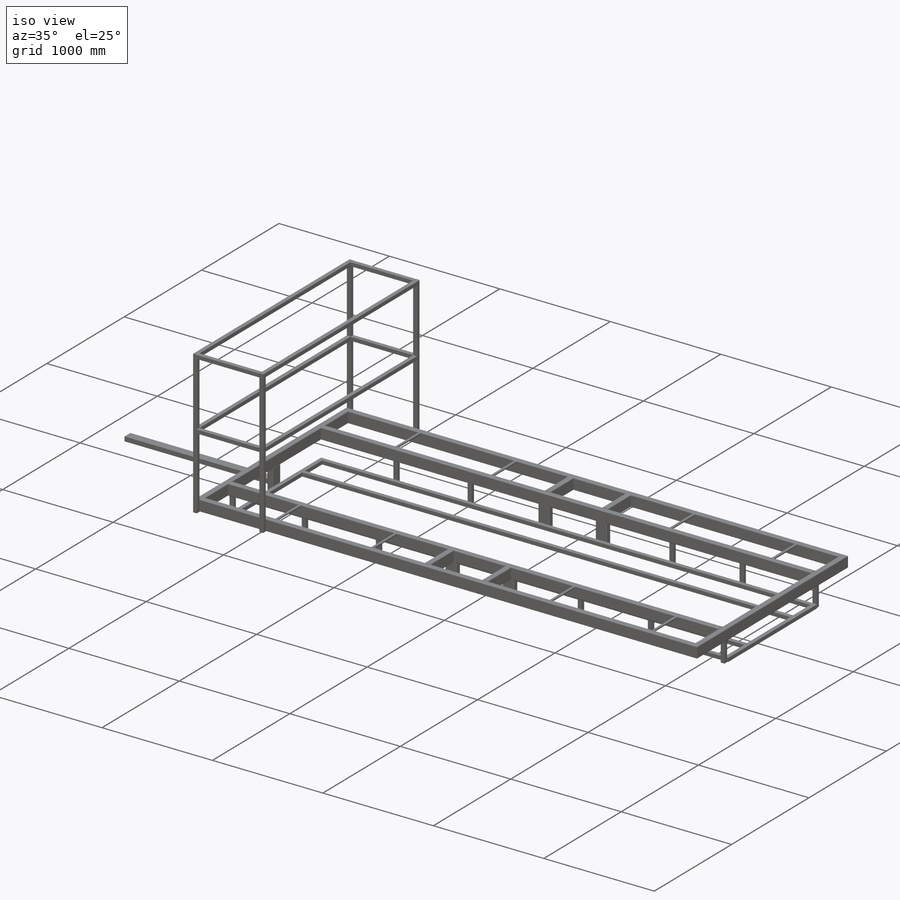
[diagram: iso view]
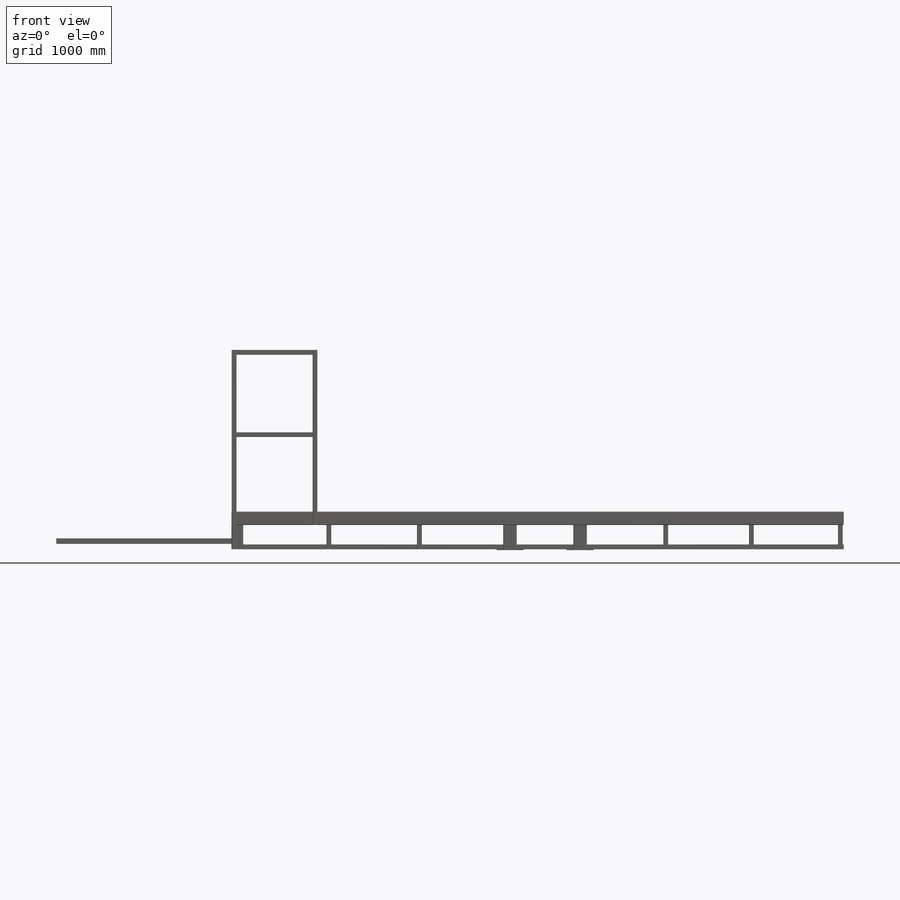
[diagram: front view]
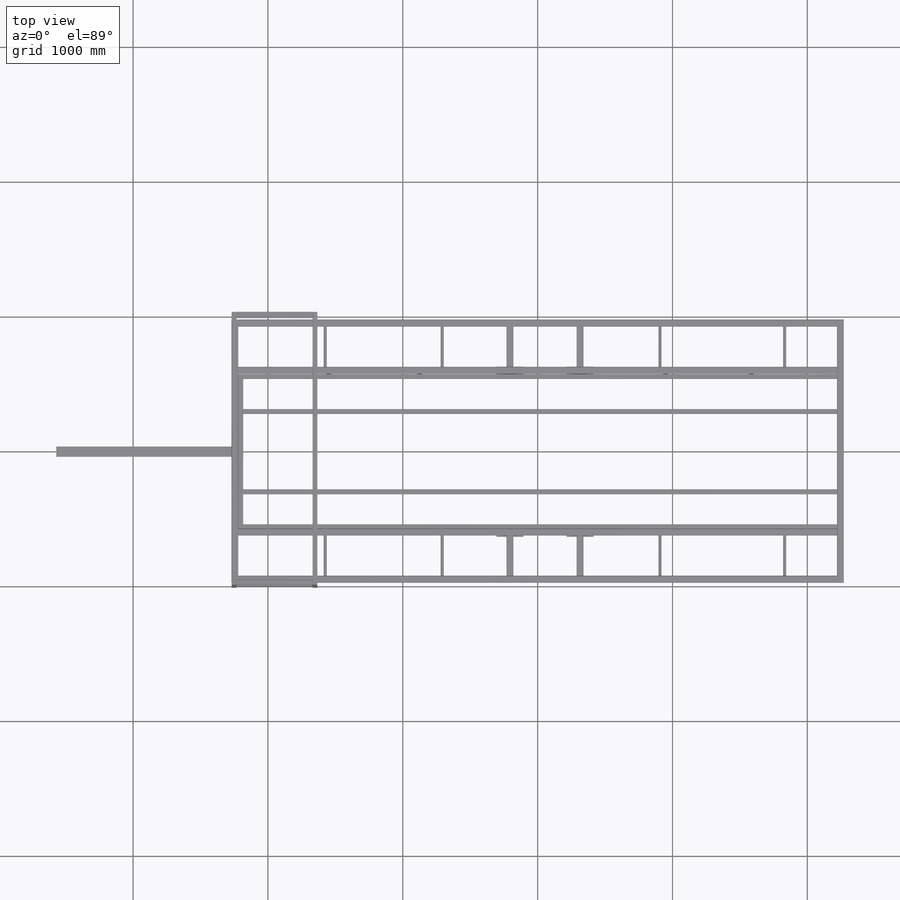
[diagram: top view]
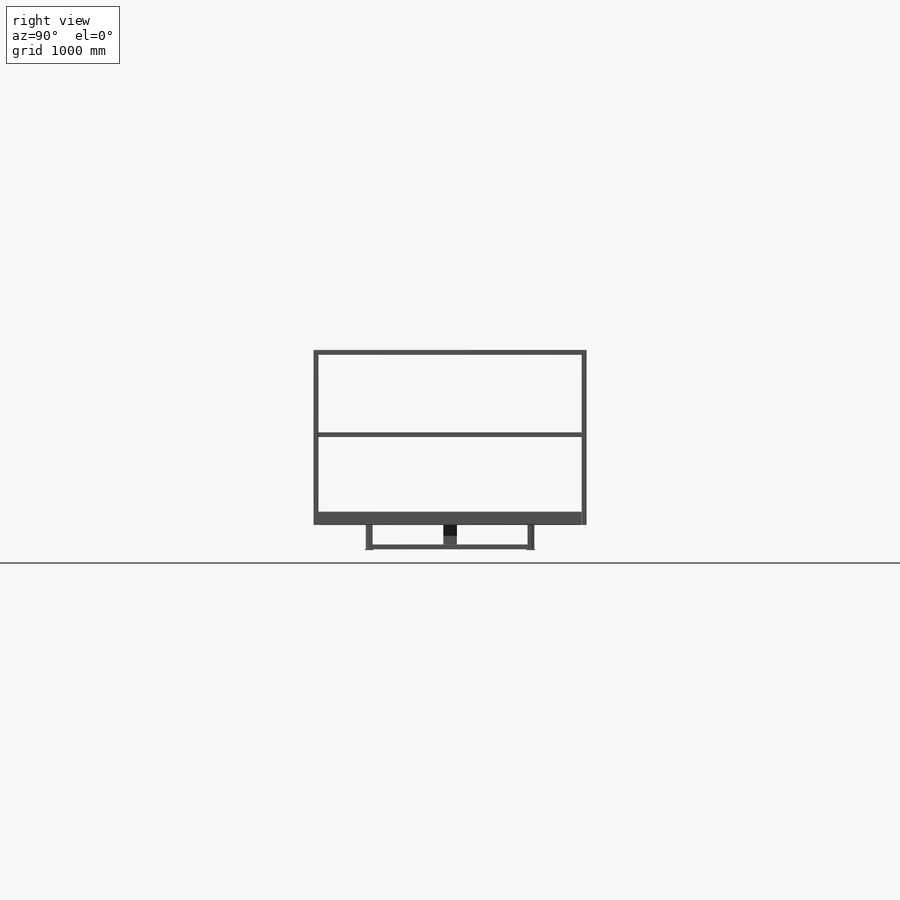
[diagram: right view]
SOLIDWORKS PART (.sldprt)
format: sldprt  version: not decoded by parser v0  size: 7,056,896 bytes
history: native  units: mm
features: sketch x53, plane x16, extrude x10, delete_body x2, material x1, mirror x1 + 13 further entries (+12 scaffold rows collapsed; 1 parser-record rows omitted)
feature tree (109):
  scaffold x12  (default folders/planes/origin — collapsed)
  material  "Plain Carbon Steel"
  "Cut-List-Item2"
  "Cut-List-Item3"
  "Cut-List-Item4"
  "Cut-List-Item5"
  "Cut-List-Item6"
  "Cut-List-Item7"
  "Cut-List-Item8"
  "Cut-List-Item9"
  "Cut-List-Item10"
  "Cut-List-Item11"
  "Cut-List-Item12"
  "Cut-List-Item13"
  "Cut-List-Item14"
  plane  "PlaneSupportCenter"  Offset=200mm
  sketch  "Sketch1"  dims[D1=4540.0mm D2=1950.0mm D3=375.0mm D4=520.0mm D5=145.0mm]
  plane  "Plane1"
  sketch  "Sketch18"  dims[c1.D1=6.35mm c1.D2=6.35mm c1.D3=6.35mm c1.D4=6.35mm c1.D5=6.35mm c1.D6=6.35mm c1.D7=6.35mm c1.D8=6.35mm c2.D1=6.604mm c2.D2=6.604mm c2.D3=6.604mm c2.D4=6.604mm c3.D1=6.4mm c3.Thickness=3.2mm c3.D4=12.9032mm c3.D5=12.9286mm c3.V_leg=100.0mm c3.H_leg=50.0mm c4.D4=50.3428mm c4.D5=50.8508mm c5.D4=~41.274964mm c5.D5=~41.274964mm]
  sketch  "Sketch14"  dims[c1.D1=100.0mm c1.D2=~1174.15348mm c1.D3=~2055.84652mm c2.D3=34.0deg c2.D1=1200.0mm c2.D2=25.0mm c3.D1=1200.0mm c3.D2=0.0mm c3.D3=~4388.754666mm c4.D3=~31.388166deg c4.D1=~4388.754666mm c5.D1=30.0deg c5.D3=1250.0mm]
  sketch  "Structural MemberYoke"
  plane  "Plane3"
  sketch  "Sketch19"  dims[c1.D1=6.35mm c1.D2=6.35mm c1.D3=6.35mm c1.D4=6.35mm c1.D5=6.35mm c1.D6=6.35mm c1.D7=6.35mm c1.D8=6.35mm c2.D1=6.604mm c2.D2=6.604mm c2.D3=6.604mm c2.D4=6.604mm c3.D1=6.4mm c3.Thickness=3.2mm c3.D4=12.9032mm c3.D5=12.9286mm c3.V_leg=100.0mm c3.H_leg=50.0mm c4.D4=50.3428mm c4.D5=50.8508mm c5.D4=~41.274964mm c5.D5=~41.274964mm c5.D1=2.0mm c5.D2=3.0mm c5.D3=3.0mm]
  sketch  "Sketch131"  dims[D1=300.0mm]
  sketch  "Structural Member14"
  plane  "Plane16"
  sketch  "Sketch133"  dims[c1.D1=6.35mm c1.D2=6.35mm c1.D3=6.35mm c1.D4=6.35mm c1.D5=6.35mm c1.D6=6.35mm c1.D7=6.35mm c1.D8=6.35mm c2.D1=6.604mm c2.D2=6.604mm c2.D3=6.604mm c2.D4=6.604mm c3.D1=6.4mm c3.Thickness=3.2mm c3.D4=12.9032mm c3.D5=12.9286mm c3.V_leg=100.0mm c3.H_leg=50.0mm c4.D4=50.3428mm c4.D5=50.8508mm c5.D4=~41.274964mm c5.D5=~41.274964mm]
  sketch  "3DSketchSuperstructure"  dims[c1.D4=533.4mm c1.D1=670.0mm c1.D2=600.0mm c1.D3=~575.052216mm c1.D6=560.0mm c1.D5=~516.108077mm c2.D3=610.0mm c2.D5=~25.145918mm c2.D10=20.0mm c2.D6=~19.182449mm c3.D10=20.0mm c3.D7=~425.223349mm c4.D10=350.0mm c4.D8=0.0mm c5.D8=19.0mm c5.D9=19.0mm c5.D5=19.0mm c5.D6=19.0mm c5.D7=311.8mm]
  sketch  "Structural MemberSuperstructure"
  plane  "Plane7"
  sketch  "Sketch140"  dims[D3=3.0mm D1=35.8mm D2=35.8mm D4=1.6mm]
  sketch  "Sketch111"  dims[D1=19.0mm D2=19.0mm]
  sketch  "Structural MemberCrossCenter"
  plane  "Plane8"
  sketch  "Sketch113"  dims[c1.D4=3.0mm c1.D5=1.8mm c1.D1=~32.824798mm c1.D2=~34.203992mm c2.D1=35.6mm c2.D2=35.6mm c2.D3=~29.830639mm c2.D4=~29.830639mm c3.D3=1.2mm]
  sketch  "Sketch114"  dims[D1=358.0mm]
  sketch  "Structural MemberRampRetainers"
  plane  "Plane9"
  sketch  "Sketch115"  dims[c1.D4=3.0mm c1.D5=1.8mm c1.D1=~32.824798mm c1.D2=~34.203992mm c2.D1=35.6mm c2.D2=35.6mm c2.D3=~29.830639mm c2.D4=~29.830639mm c3.D3=1.2mm]
  sketch  "Sketch12"  dims[D1=1300.0mm]
  sketch  "Structural MemberCouplingMount"
  plane  "Plane5"
  sketch  "Sketch136"  dims[D6=3.0mm D1=75.0mm D2=40.0mm D3=6.0mm D4=3.0mm D5=6.0mm]
  sketch  "Sketch116"  dims[c1.D1=533.4mm c1.D2=2540.0mm c1.D3=1100.0mm c1.D4=~512.908176mm c2.D4=30.0deg c2.D5=~695.806217mm c3.D5=30.0deg c3.D6=~577.863525mm c4.D6=30.0deg c4.D7=~577.863525mm c5.D7=30.0deg c5.D8=10.0mm c5.D4=75.0mm]
  plane  "PlaneTieDowns"  Offset=10.5mm
  sketch  "Sketch118"
  sketch  "Structural MemberWheelTies"
  plane  "Plane10"
  sketch  "Sketch134"  dims[In_dia=16.7mm Out_dia=21.3mm]
  sketch  "3DSketch2"  dims[D1=180.0mm]
  sketch  "Structural MemberAxleVerts"
  plane  "Plane11"
  sketch  "Sketch119"  dims[c1.D1=6.35mm c1.D2=6.35mm c1.D3=6.35mm c1.D4=6.35mm c1.D5=6.35mm c1.D6=6.35mm c1.D7=6.35mm c1.D8=6.35mm c2.D1=6.604mm c2.D2=6.604mm c2.D3=6.604mm c2.D4=6.604mm c3.D1=6.4mm c3.Thickness=3.2mm c3.D4=12.9032mm c3.D5=12.9286mm c3.V_leg=100.0mm c3.H_leg=50.0mm c4.D4=50.3428mm c4.D5=50.8508mm c5.D4=~41.274964mm c5.D5=~41.274964mm]
  sketch  "Sketch120"  dims[D3=13.0mm D1=63.0mm D2=200.0mm D4=160.0mm D5=80.0mm]
  extrude  "Boss-ExtrudeAxleFlanges"  Depth=6.3mm
  sketch  "Sketch121"  dims[D1=180.0mm]
  sketch  "Structural MemberCouplingDown"
  plane  "Plane12"
  sketch  "Sketch123"  dims[c1.D1=6.35mm c1.D2=6.35mm c1.D3=6.35mm c1.D4=6.35mm c1.D5=6.35mm c1.D6=6.35mm c1.D7=6.35mm c1.D8=6.35mm c2.D1=6.604mm c2.D2=6.604mm c2.D3=6.604mm c2.D4=6.604mm c3.D1=6.4mm c3.Thickness=3.2mm c3.D4=12.9032mm c3.D5=12.9286mm c3.V_leg=100.0mm c3.H_leg=50.0mm c4.D4=50.3428mm c4.D5=50.8508mm c5.D4=~41.274964mm c5.D5=~41.274964mm c5.D1=2.0mm c5.D2=3.0mm c5.D3=3.0mm]
  sketch  "Sketch124"  dims[D1=295.0mm]
  sketch  "Structural MemberSubFloor"
  plane  "Plane13"
  sketch  "Sketch126"  dims[c1.D4=3.0mm c1.D5=1.8mm c1.D1=~32.824798mm c1.D2=~34.203992mm c2.D1=35.6mm c2.D2=35.6mm c2.D3=~29.830639mm c2.D4=~29.830639mm c3.D3=1.2mm]
  sketch  "3DSketch3"
  sketch  "Structural MemberSubFloorVertL"
  plane  "Plane14"
  sketch  "Sketch128"  dims[c1.D4=3.0mm c1.D5=1.8mm c1.D1=~32.824798mm c1.D2=~34.203992mm c2.D1=35.6mm c2.D2=35.6mm c2.D3=~29.830639mm c2.D4=~29.830639mm c3.D3=1.2mm]
  mirror  "MirrorSubFloorVertR"
  sketch  "Sketch129"  dims[D1=100.0mm D2=~184.929234mm]
  delete_body  "Body-Delete1"
  sketch  "Sketch142"  dims[c1.D1=16.0mm c1.D2=25.0mm c1.D4=1.5mm c1.D5=1.5mm c1.D6=1.5mm c1.D3=8.0mm c2.D4=75.0mm c2.D1=40.0mm]
  extrude  "Boss-Extrude1"  Depth=6mm
  extrude  "Boss-Extrude10"  [1 undecoded]
  sketch  "Sketch142<4>"  dims[D1=6.0mm D19=325.0mm]
  extrude  "Boss-Extrude3"  [1 undecoded]
  sketch  "Sketch142<2>"  dims[D1=6.0mm]
  extrude  "Boss-Extrude4"  [1 undecoded]
  sketch  "Sketch142<3>"  dims[D1=6.0mm]
  sketch  "3DSketch4"  dims[c1.D1=6.0mm c1.D2=6.0mm c2.D1=30.0mm c2.D2=30.0mm]
  sketch  "Structural MemberRampSupport"
  plane  "Plane18"
  sketch  "Sketch143"  dims[In_dia=20.5mm Out_dia=26.9mm]
  sketch  "Sketch144"  dims[D1=25.0mm]
  extrude  "Boss-ExtrudeGateHinge"  Depth=30mm
  extrude  "Boss-Extrude9"  [1 undecoded]
  sketch  "Sketch144<2>"  dims[D1=30.0mm]
  delete_body  "MirrorGateHinge"
  sketch  "3DSketchTailgate"  dims[D1=95.0mm]
  sketch  "Structural MemberTailgate"
  plane  "Plane19"
  sketch  "Sketch145"  dims[D3=3.0mm D1=35.8mm D2=35.8mm D4=1.6mm]
  parser-record x1  (decoder bookkeeping rows leaked as tree rows — omitted from the tree; the rows remain in map.json)
  sketch  "Sketch146"  dims[c1.D1=100.0mm c1.D2=160.0mm c1.D3=14.8mm c2.D3=90.0deg c3.D3=125.0mm]
  extrude  "Boss-Extrude6"  Depth=6mm
  sketch  "Sketch147"  dims[D1=70.0mm D2=10.0mm]
  extrude  "Boss-Extrude7"  Depth=6mm
  sketch  "Sketch148"  dims[D1=0.0mm]
  extrude  "Boss-Extrude8"  Depth=6mm
decode coverage: 44 of 66 modeling features carry decoded parameters; 13 rows unclassified (native names shown)
note: ~ marks probable driven/reference dimensions
note: 4 parameter values undecoded
summary: no parameter record found for 4 features
note: suppression state not decoded; provenance and decode notes live in map.json
